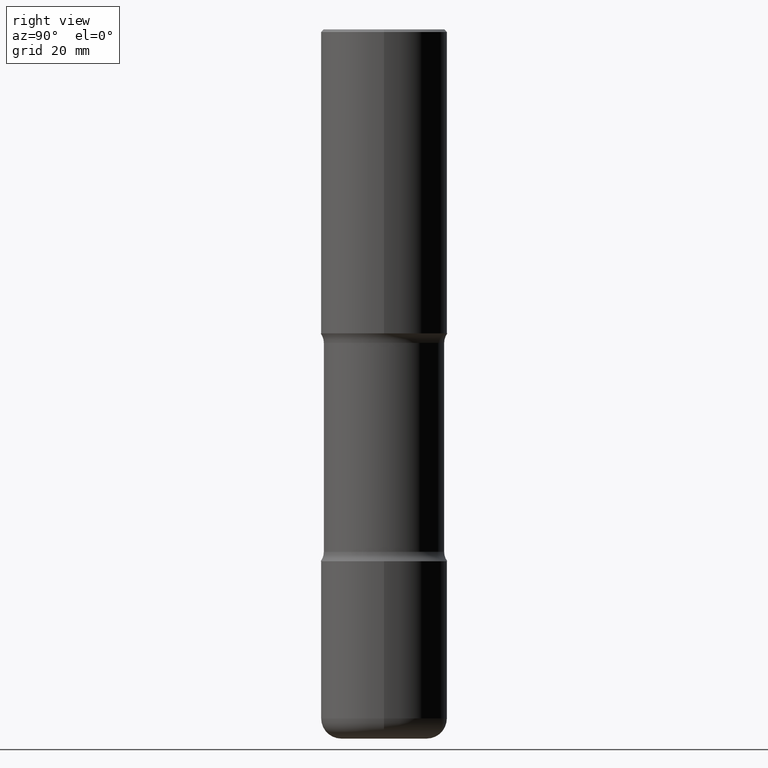
[diagram: clean part render]
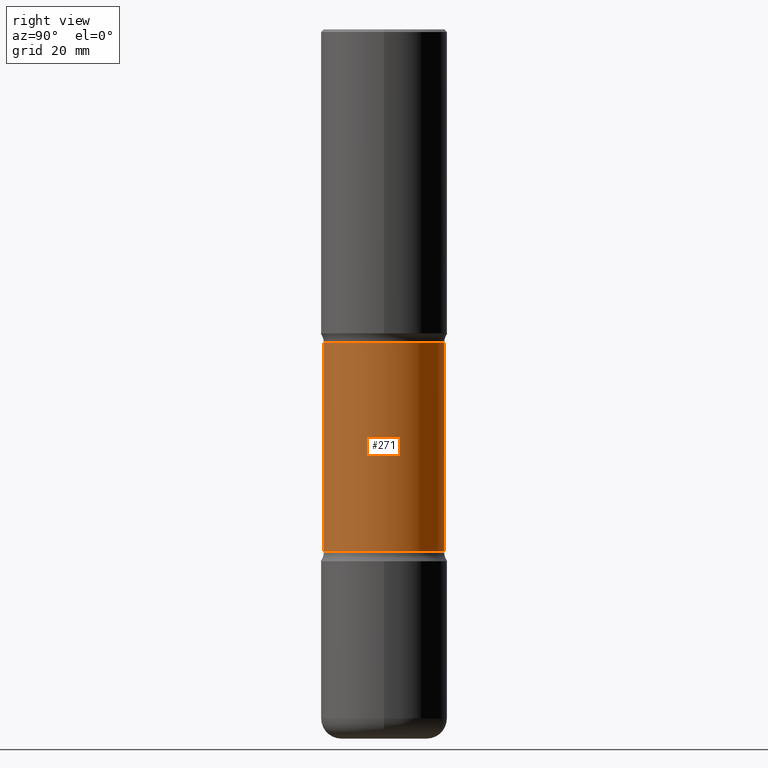
[diagram: same view with one face highlighted and labeled with its STEP entity id]
A machine part, right view. The second image highlights one B-rep face of the part: STEP entity #271.
In plain terms, the highlighted cylindrical surface (partial cylindrical patch) has radius 11.8745 mm, axis along (0, -0, -1).
Its self-contained STEP definition (entity closure, byte-faithful):
#3 = CARTESIAN_POINT ( 'NONE',  ( -3.291838451780624866E-15, -0.4675000000000141265, -4.059268949423745276 ) ) ;
#13 = CARTESIAN_POINT ( 'NONE',  ( 3.264535051818464504E-15, 0.4674999999999808198, -5.511800000000000921 ) ) ;
#19 = VECTOR ( 'NONE', #485, 39.37007874015748143 ) ;
#23 = VERTEX_POINT ( 'NONE', #102 ) ;
#45 = CARTESIAN_POINT ( 'NONE',  ( 1.359419985113462274E-28, -1.907928096735455584E-14, -5.511800000000000033 ) ) ;
#46 = AXIS2_PLACEMENT_3D ( 'NONE', #520, #557, #295 ) ;
#53 = DIRECTION ( 'NONE',  ( 2.529115312138246887E-29, -3.371694781454833941E-15, -1.000000000000000000 ) ) ;
#60 = EDGE_CURVE ( 'NONE', #72, #339, #540, .T. ) ;
#72 = VERTEX_POINT ( 'NONE', #475 ) ;
#75 = VECTOR ( 'NONE', #489, 39.37007874015748143 ) ;
#81 = AXIS2_PLACEMENT_3D ( 'NONE', #45, #53, #376 ) ;
#90 = FACE_OUTER_BOUND ( 'NONE', #452, .T. ) ;
#102 = CARTESIAN_POINT ( 'NONE',  ( 3.264535051818428216E-15, 0.4674999999999857048, -4.059268949423747941 ) ) ;
#168 = DIRECTION ( 'NONE',  ( 6.982962677686266711E-15, 1.000000000000000000, -3.506115072082477581E-15 ) ) ;
#174 = ORIENTED_EDGE ( 'NONE', *, *, #245, .F. ) ;
#178 = CARTESIAN_POINT ( 'NONE',  ( -3.207282813958053791E-15, -0.4675000000000189004, -5.511799999999999145 ) ) ;
#188 = VERTEX_POINT ( 'NONE', #3 ) ;
#222 = CARTESIAN_POINT ( 'NONE',  ( -3.291838451780669043E-15, -0.4675000000000086864, -2.436731050576252056 ) ) ;
#225 = LINE ( 'NONE', #13, #19 ) ;
#245 = EDGE_CURVE ( 'NONE', #23, #188, #419, .T. ) ;
#271 = ADVANCED_FACE ( 'NONE', ( #90 ), #554, .T. ) ;
#295 = DIRECTION ( 'NONE',  ( 6.982962677686266711E-15, 1.000000000000000000, -3.506115072082477581E-15 ) ) ;
#312 = ORIENTED_EDGE ( 'NONE', *, *, #471, .F. ) ;
#317 = ORIENTED_EDGE ( 'NONE', *, *, #60, .T. ) ;
#327 = EDGE_CURVE ( 'NONE', #339, #188, #486, .T. ) ;
#339 = VERTEX_POINT ( 'NONE', #222 ) ;
#376 = DIRECTION ( 'NONE',  ( 6.982962677686265922E-15, 1.000000000000000000, -2.337410048054985186E-15 ) ) ;
#419 = CIRCLE ( 'NONE', #46, 0.4674999999999999156 ) ;
#452 = EDGE_LOOP ( 'NONE', ( #317, #499, #174, #312 ) ) ;
#466 = AXIS2_PLACEMENT_3D ( 'NONE', #552, #516, #168 ) ;
#471 = EDGE_CURVE ( 'NONE', #72, #23, #225, .T. ) ;
#475 = CARTESIAN_POINT ( 'NONE',  ( 3.264535051818387195E-15, 0.4674999999999912004, -2.436731050576255164 ) ) ;
#485 = DIRECTION ( 'NONE',  ( 2.529115312138246887E-29, -3.371694781454833546E-15, -1.000000000000000000 ) ) ;
#486 = LINE ( 'NONE', #178, #75 ) ;
#489 = DIRECTION ( 'NONE',  ( 2.529115312138246887E-29, -3.371694781454833546E-15, -1.000000000000000000 ) ) ;
#499 = ORIENTED_EDGE ( 'NONE', *, *, #327, .T. ) ;
#516 = DIRECTION ( 'NONE',  ( 2.529115312138246887E-29, -3.371694781454833941E-15, -1.000000000000000000 ) ) ;
#520 = CARTESIAN_POINT ( 'NONE',  ( 9.920581329765965517E-29, -1.418178960422549608E-14, -4.059268949423747053 ) ) ;
#540 = CIRCLE ( 'NONE', #466, 0.4674999999999999156 ) ;
#552 = CARTESIAN_POINT ( 'NONE',  ( 5.816995885266152861E-29, -8.711087037968711425E-15, -2.436731050576253388 ) ) ;
#554 = CYLINDRICAL_SURFACE ( 'NONE', #81, 0.4674999999999998601 ) ;
#557 = DIRECTION ( 'NONE',  ( 2.529115312138246887E-29, -3.371694781454833941E-15, -1.000000000000000000 ) ) ;